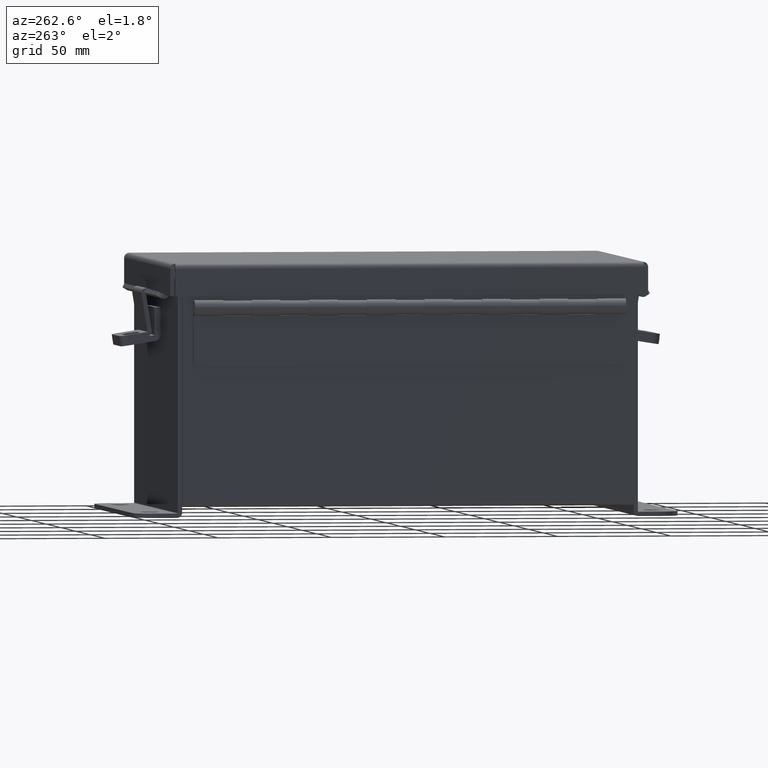
[diagram: clean part render]
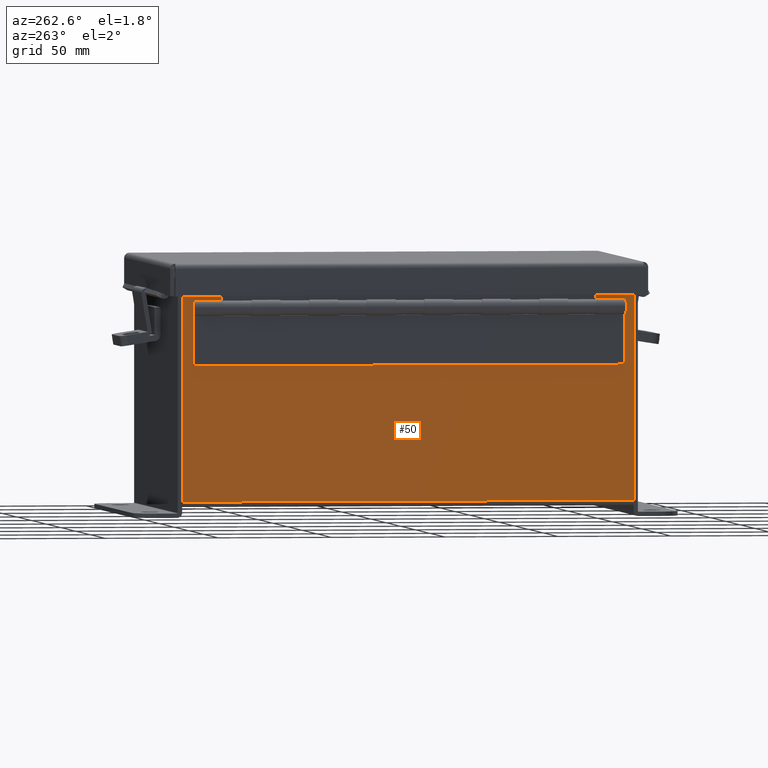
[diagram: same view with one face highlighted and labeled with its STEP entity id]
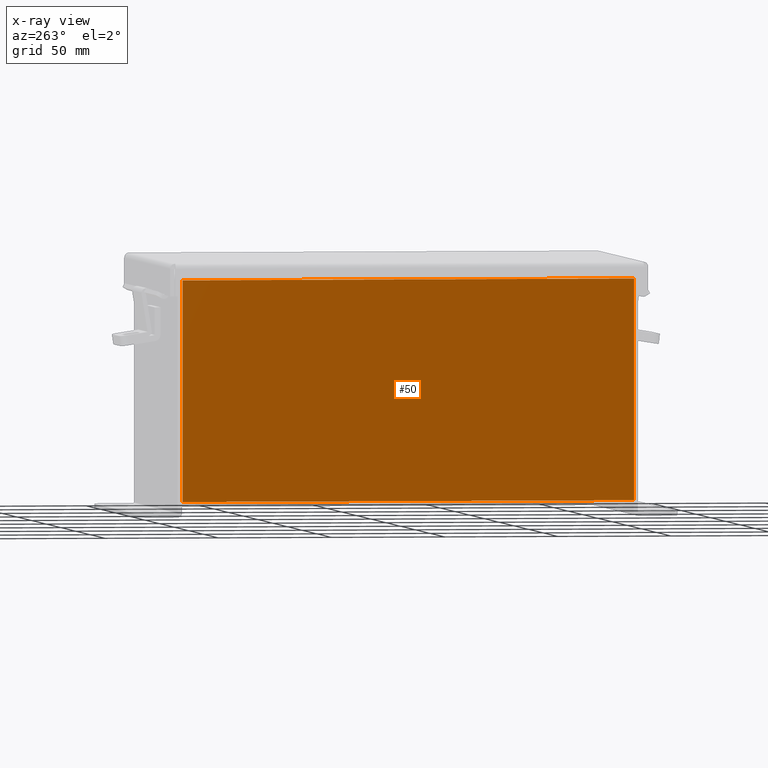
[diagram: x-ray of the same camera — body ghosted, the highlighted face saturated]
A machine part, auxiliary view. The second image highlights one B-rep face of the part: STEP entity #50.
The next image is the same camera in x-ray: the body ghosted, the highlighted face saturated — about 0% of this face is hidden behind the body in this view.
In plain terms, the highlighted planar face has unit normal (1, 0, 0).
Its self-contained STEP definition (entity closure, byte-faithful):
#50 = ADVANCED_FACE ( 'NONE', ( #4540 ), #1314, .F. ) ;
#688 = DIRECTION ( 'NONE',  ( 2.468776669828532900E-031, 1.000000000000000000, -6.959590333641414100E-017 ) ) ;
#1314 = PLANE ( 'NONE',  #6682 ) ;
#1386 = CARTESIAN_POINT ( 'NONE',  ( -2.999999999999999600, -3.925299999999999100, 0.01300000000000039000 ) ) ;
#2196 = CARTESIAN_POINT ( 'NONE',  ( -3.000000000000013800, -3.925299999999998200, 3.837599999999999700 ) ) ;
#2793 = VECTOR ( 'NONE', #688, 39.37007874015748100 ) ;
#3000 = EDGE_CURVE ( 'NONE', #6882, #12438, #5984, .T. ) ;
#3628 = VERTEX_POINT ( 'NONE', #2196 ) ;
#4345 = LINE ( 'NONE', #11581, #9934 ) ;
#4402 = DIRECTION ( 'NONE',  ( 0.0000000000000000000, 1.000000000000000000, 0.0000000000000000000 ) ) ;
#4540 = FACE_OUTER_BOUND ( 'NONE', #8221, .T. ) ;
#5239 = EDGE_CURVE ( 'NONE', #3628, #6882, #4345, .T. ) ;
#5270 = CARTESIAN_POINT ( 'NONE',  ( -3.000000000000013300, 3.925300000000000500, 3.837599999999999700 ) ) ;
#5285 = VECTOR ( 'NONE', #5706, 39.37007874015748100 ) ;
#5574 = CARTESIAN_POINT ( 'NONE',  ( -2.999999999999999600, -3.925299999999999100, -9.791967652290343300E-015 ) ) ;
#5706 = DIRECTION ( 'NONE',  ( 3.547301710985643000E-015, 0.0000000000000000000, -1.000000000000000000 ) ) ;
#5957 = LINE ( 'NONE', #13711, #2793 ) ;
#5984 = LINE ( 'NONE', #9389, #5285 ) ;
#6398 = EDGE_CURVE ( 'NONE', #12824, #3628, #12693, .T. ) ;
#6682 = AXIS2_PLACEMENT_3D ( 'NONE', #14179, #13091, #6685 ) ;
#6685 = DIRECTION ( 'NONE',  ( 3.547301710985643000E-015, 0.0000000000000000000, -1.000000000000000000 ) ) ;
#6738 = ORIENTED_EDGE ( 'NONE', *, *, #3000, .T. ) ;
#6882 = VERTEX_POINT ( 'NONE', #5270 ) ;
#7074 = ORIENTED_EDGE ( 'NONE', *, *, #8526, .F. ) ;
#8221 = EDGE_LOOP ( 'NONE', ( #8475, #6738, #7074, #9470 ) ) ;
#8475 = ORIENTED_EDGE ( 'NONE', *, *, #5239, .T. ) ;
#8526 = EDGE_CURVE ( 'NONE', #12824, #12438, #5957, .T. ) ;
#9389 = CARTESIAN_POINT ( 'NONE',  ( -2.999999999999999600, 3.925300000000000500, -1.090178089971645100E-014 ) ) ;
#9470 = ORIENTED_EDGE ( 'NONE', *, *, #6398, .T. ) ;
#9534 = VECTOR ( 'NONE', #12683, 39.37007874015748100 ) ;
#9934 = VECTOR ( 'NONE', #4402, 39.37007874015748100 ) ;
#11581 = CARTESIAN_POINT ( 'NONE',  ( -3.000000000000013800, -3.925299999999998200, 3.837599999999999700 ) ) ;
#12438 = VERTEX_POINT ( 'NONE', #14894 ) ;
#12683 = DIRECTION ( 'NONE',  ( -3.547301710985643000E-015, 2.837841368788514100E-016, 1.000000000000000000 ) ) ;
#12693 = LINE ( 'NONE', #5574, #9534 ) ;
#12824 = VERTEX_POINT ( 'NONE', #1386 ) ;
#13091 = DIRECTION ( 'NONE',  ( 1.000000000000000000, 0.0000000000000000000, 3.547301710985643000E-015 ) ) ;
#13711 = CARTESIAN_POINT ( 'NONE',  ( -2.999999999999999600, 3.925300000000000500, 0.01299999999999984300 ) ) ;
#14179 = CARTESIAN_POINT ( 'NONE',  ( -2.999999999999999600, 0.0000000000000000000, -1.090178089971645100E-014 ) ) ;
#14894 = CARTESIAN_POINT ( 'NONE',  ( -2.999999999999999600, 3.925300000000000500, 0.01299999999999979100 ) ) ;